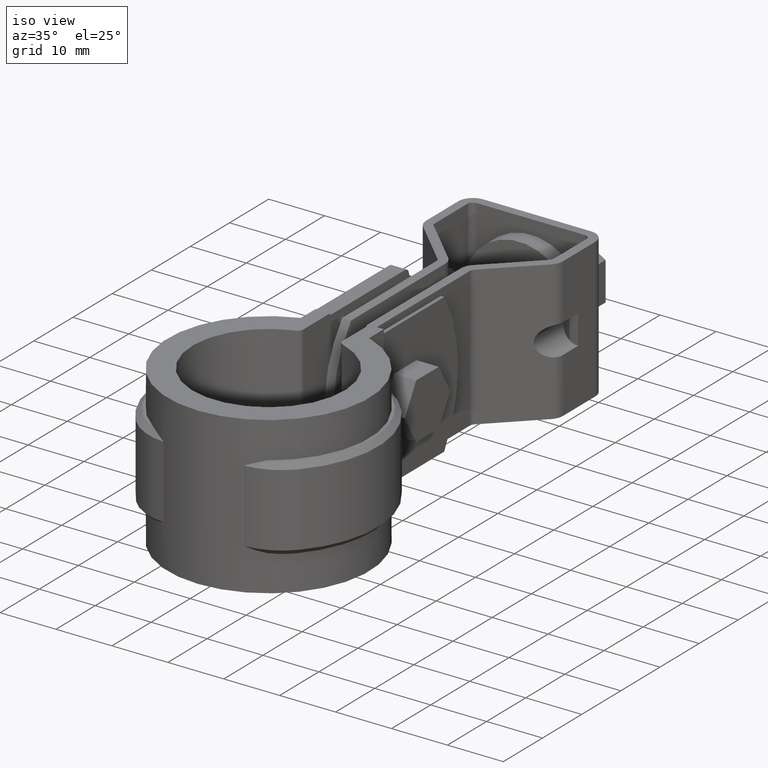
[diagram: clean part render]
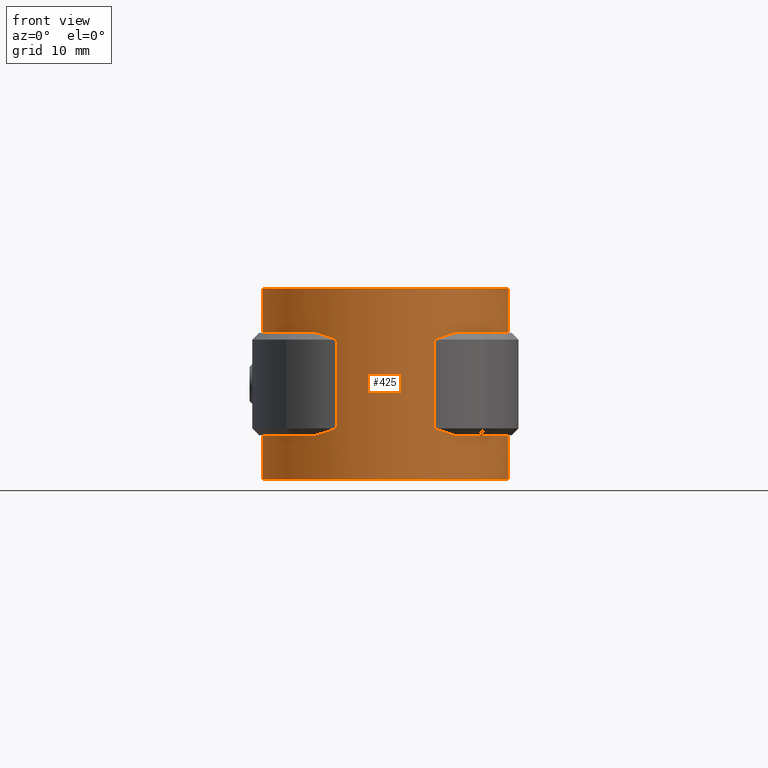
[diagram: tour spotlight — one face highlighted and labeled with its STEP entity id]
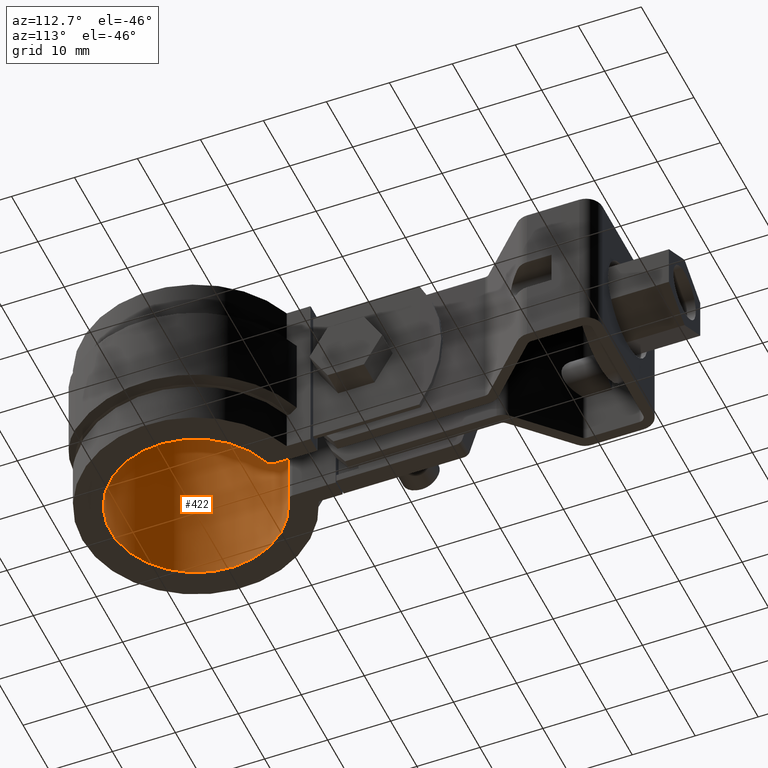
[diagram: tour spotlight — one face highlighted and labeled with its STEP entity id]
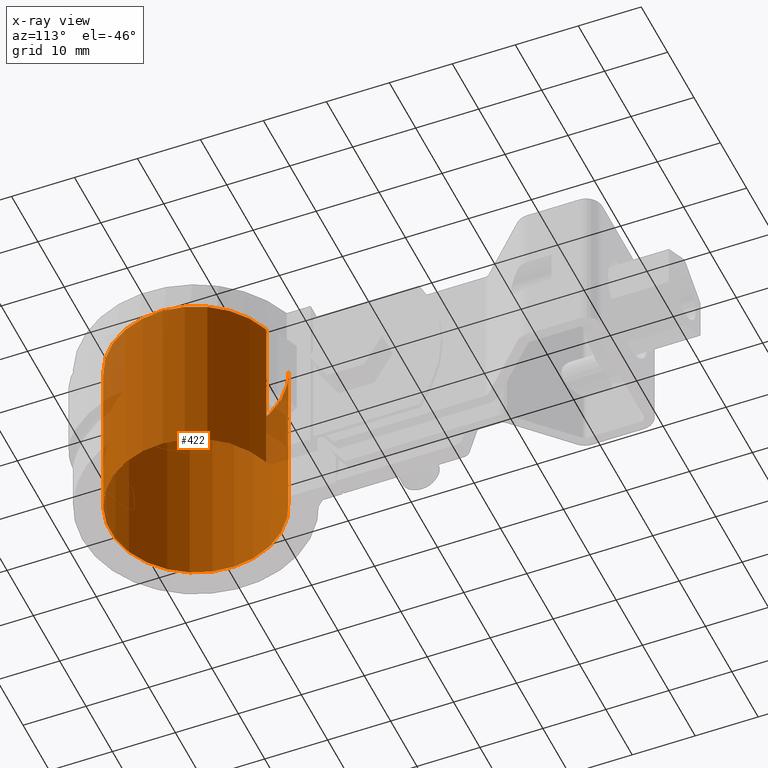
[diagram: x-ray of the same camera — body ghosted, this tour face saturated]
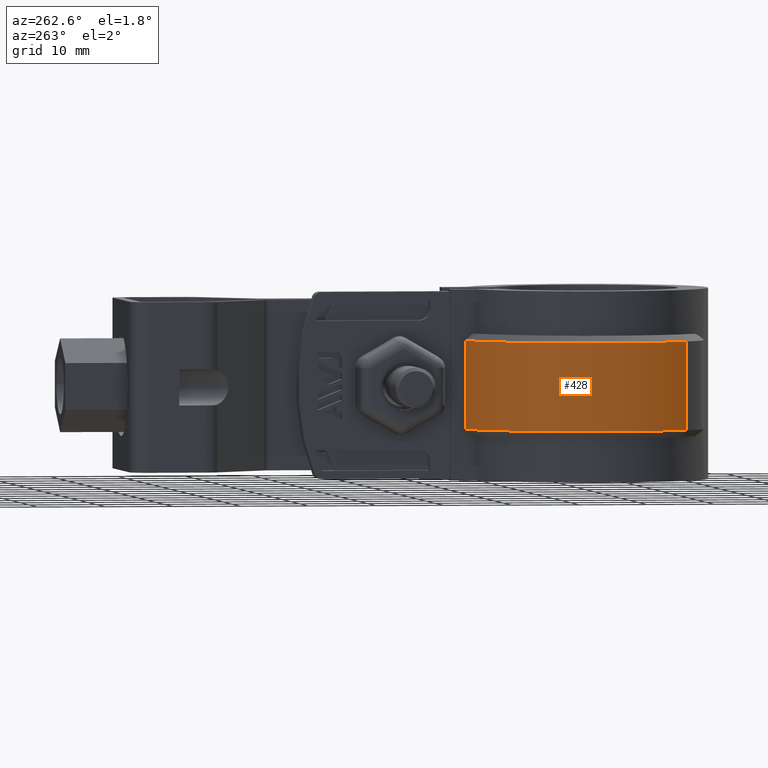
[diagram: tour spotlight — one face highlighted and labeled with its STEP entity id]
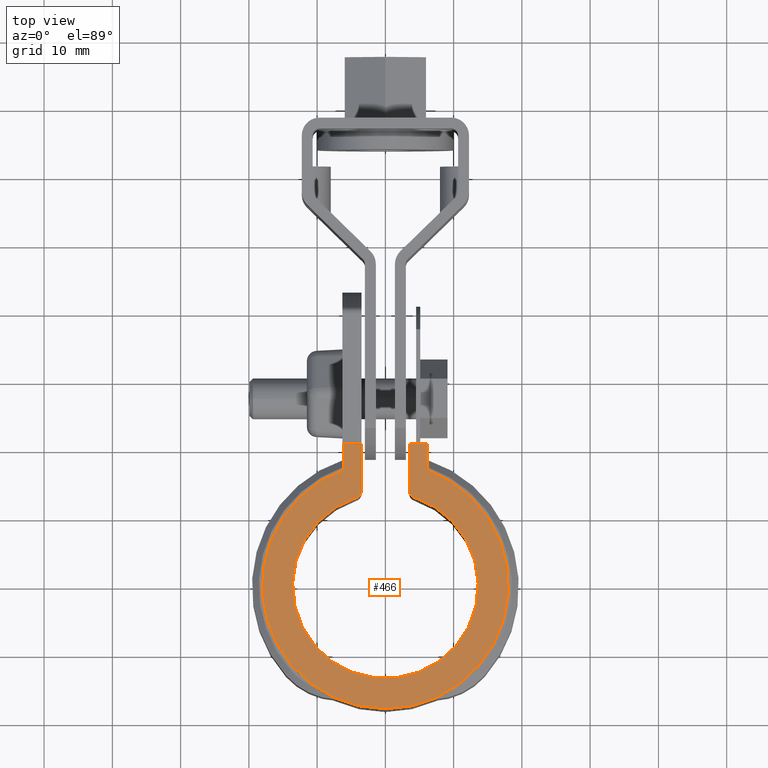
[diagram: tour spotlight — one face highlighted and labeled with its STEP entity id]
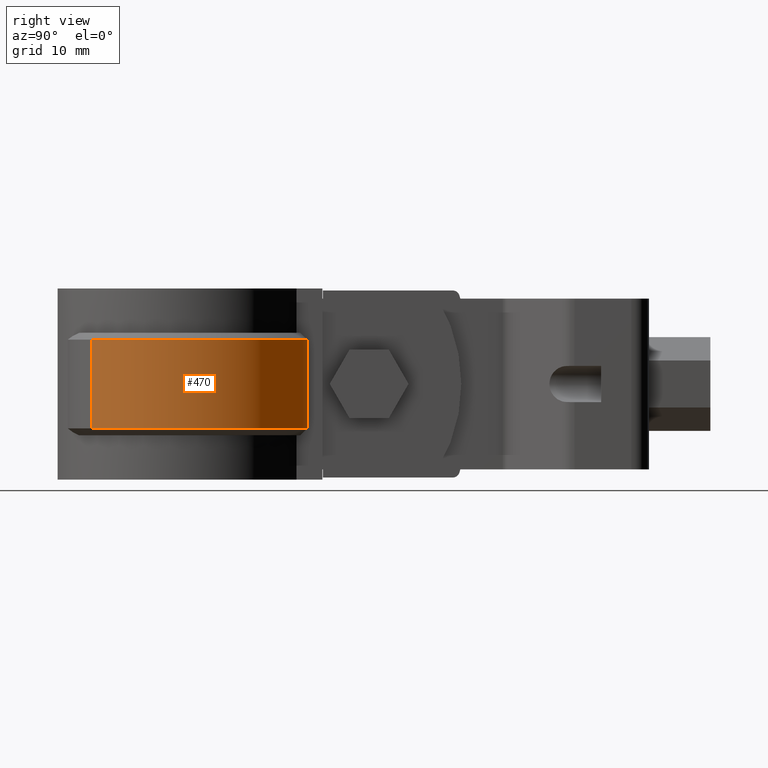
[diagram: tour spotlight — one face highlighted and labeled with its STEP entity id]
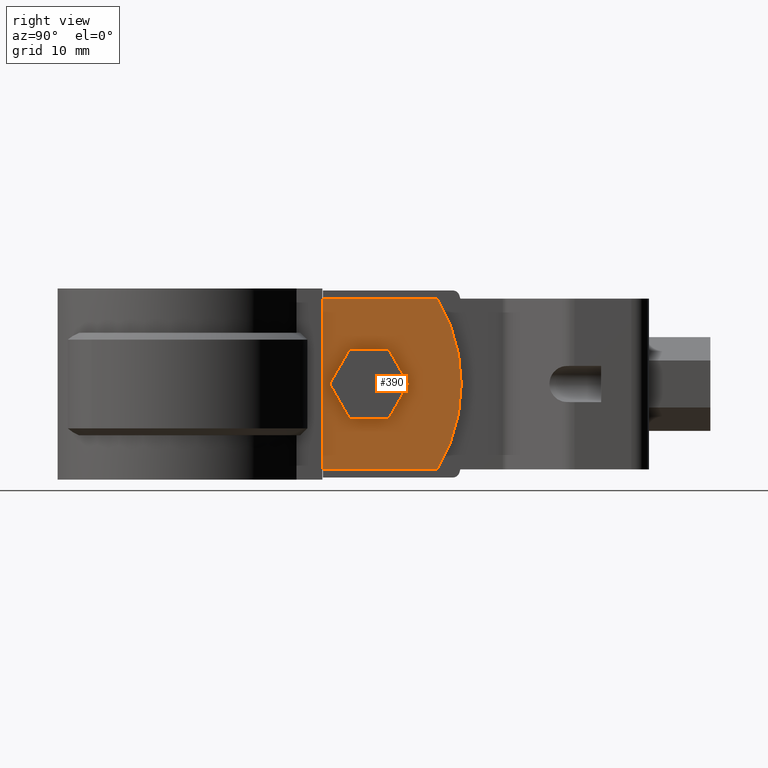
[diagram: tour spotlight — one face highlighted and labeled with its STEP entity id]
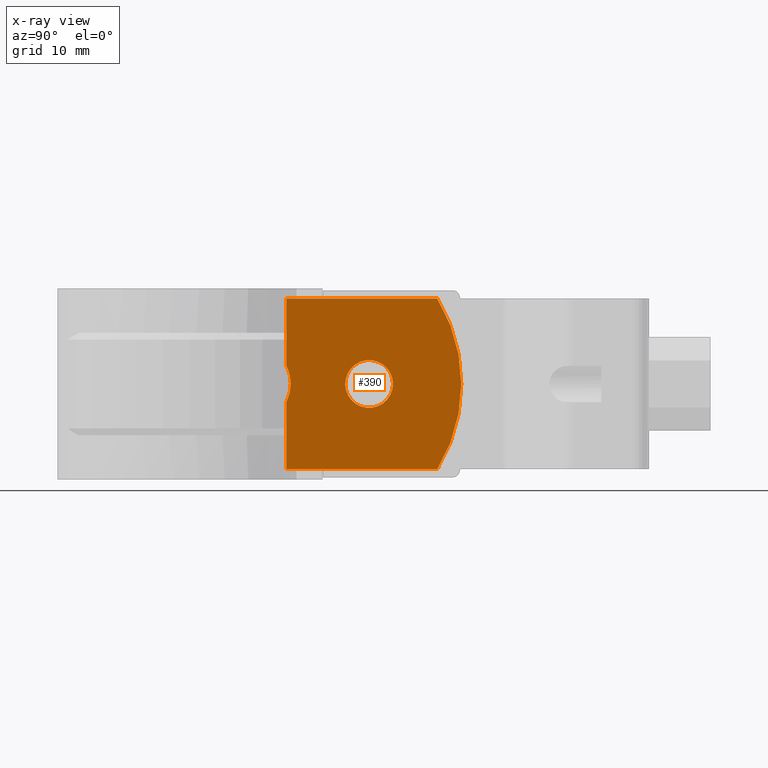
[diagram: x-ray of the same camera — body ghosted, this tour face saturated]
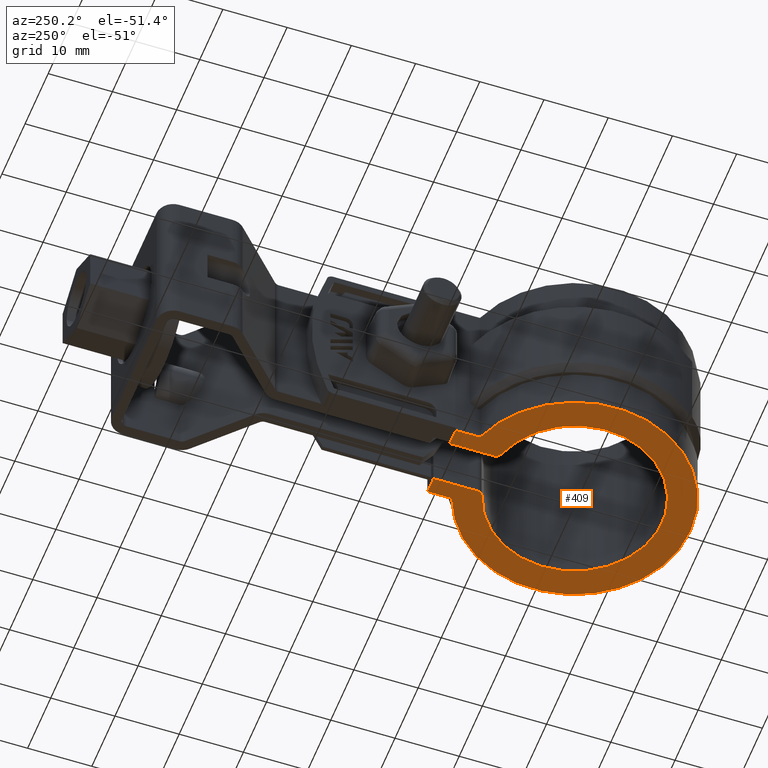
[diagram: tour spotlight — one face highlighted and labeled with its STEP entity id]
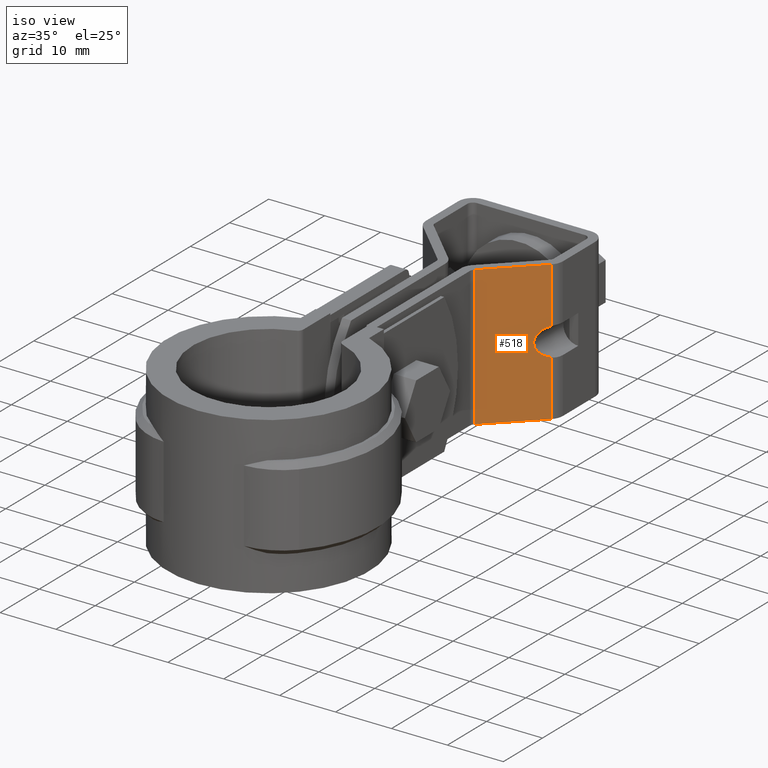
[diagram: tour spotlight — one face highlighted and labeled with its STEP entity id]
A machine part: a face-by-face anatomy tour. The part has 325 B-rep faces; the first image is the clean iso view, then the 8 largest visible faces are spotlighted one at a time (largest first), each with its STEP entity span.

Face 1 — front view, entity #425. In plain terms, the highlighted cylindrical surface (partial cylindrical patch) has radius 18.035 mm, axis along (0, 0, -1).
Definition (entity closure, byte-faithful):
#425 = ADVANCED_FACE( '', ( #820 ), #821, .T. );
#820 = FACE_OUTER_BOUND( '', #1709, .T. );
#821 = CYLINDRICAL_SURFACE( '', #1710, 18.0350000000000 );
#1709 = EDGE_LOOP( '', ( #3469, #3470, #3471, #3472, #3473, #3474, #3475, #3476, #3477, #3478, #3479, #3480, #3481, #3482, #3483, #3484 ) );
#1710 = AXIS2_PLACEMENT_3D( '', #3485, #3486, #3487 );
#3469 = ORIENTED_EDGE( '', *, *, #6194, .F. );
#3470 = ORIENTED_EDGE( '', *, *, #6191, .T. );
#3471 = ORIENTED_EDGE( '', *, *, #6195, .T. );
#3472 = ORIENTED_EDGE( '', *, *, #6196, .T. );
#3473 = ORIENTED_EDGE( '', *, *, #6197, .T. );
#3474 = ORIENTED_EDGE( '', *, *, #6198, .T. );
#3475 = ORIENTED_EDGE( '', *, *, #6199, .T. );
#3476 = ORIENTED_EDGE( '', *, *, #6123, .F. );
#3477 = ORIENTED_EDGE( '', *, *, #6200, .T. );
#3478 = ORIENTED_EDGE( '', *, *, #6201, .T. );
#3479 = ORIENTED_EDGE( '', *, *, #6202, .T. );
#3480 = ORIENTED_EDGE( '', *, *, #6203, .T. );
#3481 = ORIENTED_EDGE( '', *, *, #6204, .F. );
#3482 = ORIENTED_EDGE( '', *, *, #6117, .F. );
#3483 = ORIENTED_EDGE( '', *, *, #6115, .F. );
#3484 = ORIENTED_EDGE( '', *, *, #6205, .T. );
#3485 = CARTESIAN_POINT( '', ( 0.000000000000000, 1.38777878078145E-014, -26.5000000000000 ) );
#3486 = DIRECTION( '', ( 0.000000000000000, 0.000000000000000, -1.00000000000000 ) );
#3487 = DIRECTION( '', ( 0.000000000000000, -1.00000000000000, 0.000000000000000 ) );
#6115 = EDGE_CURVE( '', #7124, #7107, #7126, .T. );
#6117 = EDGE_CURVE( '', #7107, #7129, #7130, .T. );
#6123 = EDGE_CURVE( '', #7139, #7141, #7142, .T. );
#6191 = EDGE_CURVE( '', #7263, #7261, #7264, .T. );
#6194 = EDGE_CURVE( '', #7263, #7267, #7268, .T. );
#6195 = EDGE_CURVE( '', #7261, #7269, #7270, .T. );
#6196 = EDGE_CURVE( '', #7269, #7271, #7272, .T. );
#6197 = EDGE_CURVE( '', #7271, #7273, #7274, .T. );
#6198 = EDGE_CURVE( '', #7273, #7275, #7276, .T. );
#6199 = EDGE_CURVE( '', #7275, #7141, #7277, .T. );
#6200 = EDGE_CURVE( '', #7139, #7278, #7279, .T. );
#6201 = EDGE_CURVE( '', #7278, #7280, #7281, .T. );
#6202 = EDGE_CURVE( '', #7280, #7282, #7283, .F. );
#6203 = EDGE_CURVE( '', #7282, #7284, #7285, .T. );
#6204 = EDGE_CURVE( '', #7129, #7284, #7286, .T. );
#6205 = EDGE_CURVE( '', #7124, #7267, #7287, .T. );
#7107 = VERTEX_POINT( '', #9369 );
#7124 = VERTEX_POINT( '', #9391 );
#7126 = CIRCLE( '', #9394, 18.0350000000000 );
#7129 = VERTEX_POINT( '', #9398 );
#7130 = LINE( '', #9399, #9400 );
#7139 = VERTEX_POINT( '', #9417 );
#7141 = VERTEX_POINT( '', #9420 );
#7142 = LINE( '', #9421, #9422 );
#7261 = VERTEX_POINT( '', #9744 );
#7263 = VERTEX_POINT( '', #9746 );
#7264 = B_SPLINE_CURVE_WITH_KNOTS( '', 3, ( #9747, #9748, #9749, #9750 ), .UNSPECIFIED., .F., .F., ( 4, 4 ), ( 8.49837472194074E-018, 0.00356639113726256 ), .UNSPECIFIED. );
#7267 = VERTEX_POINT( '', #9754 );
#7268 = CIRCLE( '', #9755, 18.0350000000000 );
#7269 = VERTEX_POINT( '', #9756 );
#7270 = LINE( '', #9757, #9758 );
#7271 = VERTEX_POINT( '', #9759 );
#7272 = B_SPLINE_CURVE_WITH_KNOTS( '', 3, ( #9760, #9761, #9762, #9763 ), .UNSPECIFIED., .F., .F., ( 4, 4 ), ( 0.000000000000000, 0.00356639113726257 ), .UNSPECIFIED. );
#7273 = VERTEX_POINT( '', #9764 );
#7274 = CIRCLE( '', #9765, 18.0350000000000 );
#7275 = VERTEX_POINT( '', #9766 );
#7276 = LINE( '', #9767, #9768 );
#7277 = CIRCLE( '', #9769, 18.0350000000000 );
#7278 = VERTEX_POINT( '', #9770 );
#7279 = CIRCLE( '', #9771, 18.0350000000000 );
#7280 = VERTEX_POINT( '', #9772 );
#7281 = B_SPLINE_CURVE_WITH_KNOTS( '', 3, ( #9773, #9774, #9775, #9776 ), .UNSPECIFIED., .F., .F., ( 4, 4 ), ( 9.69739903612216E-018, 0.00356639113726256 ), .UNSPECIFIED. );
#7282 = VERTEX_POINT( '', #9777 );
#7283 = LINE( '', #9778, #9779 );
#7284 = VERTEX_POINT( '', #9780 );
#7285 = B_SPLINE_CURVE_WITH_KNOTS( '', 3, ( #9781, #9782, #9783, #9784 ), .UNSPECIFIED., .F., .F., ( 4, 4 ), ( 0.000000000000000, 0.00356639113726257 ), .UNSPECIFIED. );
#7286 = CIRCLE( '', #9785, 18.0350000000000 );
#7287 = LINE( '', #9786, #9787 );
#9369 = CARTESIAN_POINT( '', ( -6.10000000000000, 16.9720719124095, -26.5000000000000 ) );
#9391 = CARTESIAN_POINT( '', ( 6.10000000000001, 16.9720719124095, -26.5000000000000 ) );
#9394 = AXIS2_PLACEMENT_3D( '', #12166, #12167, #12168 );
#9398 = CARTESIAN_POINT( '', ( -6.10000000000000, 16.9720719124095, -20.0000000000000 ) );
#9399 = CARTESIAN_POINT( '', ( -6.10000000000000, 16.9720719124095, -26.5000000000000 ) );
#9400 = VECTOR( '', #12170, 1000.00000000000 );
#9417 = CARTESIAN_POINT( '', ( -6.10000000000000, 16.9720719124095, -5.00000000000000 ) );
#9420 = CARTESIAN_POINT( '', ( -6.10000000000000, 16.9720719124095, 1.50000000000000 ) );
#9421 = CARTESIAN_POINT( '', ( -6.10000000000000, 16.9720719124095, -26.5000000000000 ) );
#9422 = VECTOR( '', #12174, 1000.00000000000 );
#9744 = CARTESIAN_POINT( '', ( 7.17238060487721, -16.5474524159697, -19.0000000000000 ) );
#9746 = CARTESIAN_POINT( '', ( 10.1699563448573, -14.8940663669697, -20.0000000000000 ) );
#9747 = CARTESIAN_POINT( '', ( 10.1699563448573, -14.8940663669697, -20.0000000000000 ) );
#9748 = CARTESIAN_POINT( '', ( 9.20551594035216, -15.5526049130839, -19.7400863560935 ) );
#9749 = CARTESIAN_POINT( '', ( 8.20683278901869, -16.0990761586644, -19.3975274280984 ) );
#9750 = CARTESIAN_POINT( '', ( 7.17238060487720, -16.5474524159697, -19.0000000000000 ) );
#9754 = CARTESIAN_POINT( '', ( 6.10000000000001, 16.9720719124095, -20.0000000000000 ) );
#9755 = AXIS2_PLACEMENT_3D( '', #12272, #12273, #12274 );
#9756 = CARTESIAN_POINT( '', ( 7.17238060487721, -16.5474524159697, -6.00000000000000 ) );
#9757 = CARTESIAN_POINT( '', ( 7.17238060487721, -16.5474524159697, -12.5000000000000 ) );
#9758 = VECTOR( '', #12275, 1000.00000000000 );
#9759 = CARTESIAN_POINT( '', ( 10.1699563448573, -14.8940663669697, -5.00000000000000 ) );
#9760 = CARTESIAN_POINT( '', ( 7.17238060487721, -16.5474524159697, -6.00000000000000 ) );
#9761 = CARTESIAN_POINT( '', ( 8.20683278901869, -16.0990761586644, -5.60247257190161 ) );
#9762 = CARTESIAN_POINT( '', ( 9.20551594035216, -15.5526049130839, -5.25991364390649 ) );
#9763 = CARTESIAN_POINT( '', ( 10.1699563448573, -14.8940663669697, -5.00000000000000 ) );
#9764 = CARTESIAN_POINT( '', ( 6.10000000000001, 16.9720719124095, -5.00000000000000 ) );
#9765 = AXIS2_PLACEMENT_3D( '', #12276, #12277, #12278 );
#9766 = CARTESIAN_POINT( '', ( 6.10000000000001, 16.9720719124095, 1.50000000000000 ) );
#9767 = CARTESIAN_POINT( '', ( 6.10000000000001, 16.9720719124095, -26.5000000000000 ) );
#9768 = VECTOR( '', #12279, 1000.00000000000 );
#9769 = AXIS2_PLACEMENT_3D( '', #12280, #12281, #12282 );
#9770 = CARTESIAN_POINT( '', ( -10.1699563448573, -14.8940663669697, -5.00000000000000 ) );
#9771 = AXIS2_PLACEMENT_3D( '', #12283, #12284, #12285 );
#9772 = CARTESIAN_POINT( '', ( -7.17238060487721, -16.5474524159697, -6.00000000000000 ) );
#9773 = CARTESIAN_POINT( '', ( -10.1699563448573, -14.8940663669697, -5.00000000000000 ) );
#9774 = CARTESIAN_POINT( '', ( -9.20551594035216, -15.5526049130839, -5.25991364390649 ) );
#9775 = CARTESIAN_POINT( '', ( -8.20683278901869, -16.0990761586644, -5.60247257190161 ) );
#9776 = CARTESIAN_POINT( '', ( -7.17238060487720, -16.5474524159697, -6.00000000000000 ) );
#9777 = CARTESIAN_POINT( '', ( -7.17238060487721, -16.5474524159697, -19.0000000000000 ) );
#9778 = CARTESIAN_POINT( '', ( -7.17238060487721, -16.5474524159697, -12.5000000000000 ) );
#9779 = VECTOR( '', #12286, 1000.00000000000 );
#9780 = CARTESIAN_POINT( '', ( -10.1699563448573, -14.8940663669697, -20.0000000000000 ) );
#9781 = CARTESIAN_POINT( '', ( -7.17238060487721, -16.5474524159697, -19.0000000000000 ) );
#9782 = CARTESIAN_POINT( '', ( -8.20683278901869, -16.0990761586644, -19.3975274280984 ) );
#9783 = CARTESIAN_POINT( '', ( -9.20551594035216, -15.5526049130839, -19.7400863560935 ) );
#9784 = CARTESIAN_POINT( '', ( -10.1699563448573, -14.8940663669697, -20.0000000000000 ) );
#9785 = AXIS2_PLACEMENT_3D( '', #12287, #12288, #12289 );
#9786 = CARTESIAN_POINT( '', ( 6.10000000000001, 16.9720719124095, -26.5000000000000 ) );
#9787 = VECTOR( '', #12290, 1000.00000000000 );
#12166 = CARTESIAN_POINT( '', ( 0.000000000000000, 1.38777878078145E-014, -26.5000000000000 ) );
#12167 = DIRECTION( '', ( 0.000000000000000, 0.000000000000000, -1.00000000000000 ) );
#12168 = DIRECTION( '', ( 1.00000000000000, 0.000000000000000, 0.000000000000000 ) );
#12170 = DIRECTION( '', ( 0.000000000000000, 0.000000000000000, 1.00000000000000 ) );
#12174 = DIRECTION( '', ( 0.000000000000000, 0.000000000000000, 1.00000000000000 ) );
#12272 = CARTESIAN_POINT( '', ( 0.000000000000000, 1.38777878078145E-014, -20.0000000000000 ) );
#12273 = DIRECTION( '', ( 0.000000000000000, 0.000000000000000, 1.00000000000000 ) );
#12274 = DIRECTION( '', ( 1.00000000000000, 0.000000000000000, 0.000000000000000 ) );
#12275 = DIRECTION( '', ( 0.000000000000000, 0.000000000000000, 1.00000000000000 ) );
#12276 = CARTESIAN_POINT( '', ( 0.000000000000000, 1.38777878078145E-014, -5.00000000000000 ) );
#12277 = DIRECTION( '', ( 0.000000000000000, 0.000000000000000, 1.00000000000000 ) );
#12278 = DIRECTION( '', ( 1.00000000000000, 0.000000000000000, 0.000000000000000 ) );
#12279 = DIRECTION( '', ( 0.000000000000000, 0.000000000000000, 1.00000000000000 ) );
#12280 = CARTESIAN_POINT( '', ( 0.000000000000000, 1.38777878078145E-014, 1.50000000000000 ) );
#12281 = DIRECTION( '', ( 0.000000000000000, 0.000000000000000, -1.00000000000000 ) );
#12282 = DIRECTION( '', ( 1.00000000000000, 0.000000000000000, 0.000000000000000 ) );
#12283 = CARTESIAN_POINT( '', ( 0.000000000000000, 1.38777878078145E-014, -5.00000000000000 ) );
#12284 = DIRECTION( '', ( 0.000000000000000, 0.000000000000000, 1.00000000000000 ) );
#12285 = DIRECTION( '', ( 1.00000000000000, 0.000000000000000, 0.000000000000000 ) );
#12286 = DIRECTION( '', ( 0.000000000000000, 0.000000000000000, 1.00000000000000 ) );
#12287 = CARTESIAN_POINT( '', ( 0.000000000000000, 1.38777878078145E-014, -20.0000000000000 ) );
#12288 = DIRECTION( '', ( 0.000000000000000, 0.000000000000000, 1.00000000000000 ) );
#12289 = DIRECTION( '', ( 1.00000000000000, 0.000000000000000, 0.000000000000000 ) );
#12290 = DIRECTION( '', ( 0.000000000000000, 0.000000000000000, 1.00000000000000 ) );

Face 2 — auxiliary view, entity #422. An x-ray twin of the same camera follows (body ghosted, this face saturated) — the face is partly hidden behind the body. In plain terms, the highlighted cylindrical surface (partial cylindrical patch) has radius 13.6 mm, axis along (0, 0, -1).
Definition (entity closure, byte-faithful):
#422 = ADVANCED_FACE( '', ( #814 ), #815, .F. );
#814 = FACE_OUTER_BOUND( '', #1703, .T. );
#815 = CYLINDRICAL_SURFACE( '', #1704, 13.6000000000000 );
#1703 = EDGE_LOOP( '', ( #3448, #3449, #3450, #3451 ) );
#1704 = AXIS2_PLACEMENT_3D( '', #3452, #3453, #3454 );
#3448 = ORIENTED_EDGE( '', *, *, #6110, .F. );
#3449 = ORIENTED_EDGE( '', *, *, #6186, .T. );
#3450 = ORIENTED_EDGE( '', *, *, #6188, .T. );
#3451 = ORIENTED_EDGE( '', *, *, #6182, .T. );
#3452 = CARTESIAN_POINT( '', ( 0.000000000000000, 0.000000000000000, -64.3703924986111 ) );
#3453 = DIRECTION( '', ( 0.000000000000000, 0.000000000000000, -1.00000000000000 ) );
#3454 = DIRECTION( '', ( -1.00000000000000, 0.000000000000000, 0.000000000000000 ) );
#6110 = EDGE_CURVE( '', #7114, #7116, #7117, .F. );
#6182 = EDGE_CURVE( '', #7247, #7116, #7248, .F. );
#6186 = EDGE_CURVE( '', #7114, #7252, #7255, .T. );
#6188 = EDGE_CURVE( '', #7252, #7247, #7257, .F. );
#7114 = VERTEX_POINT( '', #9379 );
#7116 = VERTEX_POINT( '', #9381 );
#7117 = CIRCLE( '', #9382, 13.6000000000000 );
#7247 = VERTEX_POINT( '', #9725 );
#7248 = LINE( '', #9726, #9727 );
#7252 = VERTEX_POINT( '', #9732 );
#7255 = LINE( '', #9735, #9736 );
#7257 = CIRCLE( '', #9739, 13.6000000000000 );
#9379 = CARTESIAN_POINT( '', ( -4.19178082191781, 12.9378890681982, -26.5000000000000 ) );
#9381 = CARTESIAN_POINT( '', ( 4.19178082191781, 12.9378890681982, -26.5000000000000 ) );
#9382 = AXIS2_PLACEMENT_3D( '', #12157, #12158, #12159 );
#9725 = CARTESIAN_POINT( '', ( 4.19178082191781, 12.9378890681982, 1.50000000000000 ) );
#9726 = CARTESIAN_POINT( '', ( 4.19178082191781, 12.9378890681982, -64.3703924986111 ) );
#9727 = VECTOR( '', #12251, 1000.00000000000 );
#9732 = CARTESIAN_POINT( '', ( -4.19178082191781, 12.9378890681982, 1.50000000000000 ) );
#9735 = CARTESIAN_POINT( '', ( -4.19178082191781, 12.9378890681982, -64.3703924986111 ) );
#9736 = VECTOR( '', #12259, 1000.00000000000 );
#9739 = AXIS2_PLACEMENT_3D( '', #12261, #12262, #12263 );
#12157 = CARTESIAN_POINT( '', ( 0.000000000000000, 0.000000000000000, -26.5000000000000 ) );
#12158 = DIRECTION( '', ( 0.000000000000000, 0.000000000000000, -1.00000000000000 ) );
#12159 = DIRECTION( '', ( -1.00000000000000, 0.000000000000000, 0.000000000000000 ) );
#12251 = DIRECTION( '', ( 0.000000000000000, 0.000000000000000, 1.00000000000000 ) );
#12259 = DIRECTION( '', ( 0.000000000000000, 0.000000000000000, 1.00000000000000 ) );
#12261 = CARTESIAN_POINT( '', ( 0.000000000000000, 0.000000000000000, 1.50000000000000 ) );
#12262 = DIRECTION( '', ( 0.000000000000000, 0.000000000000000, -1.00000000000000 ) );
#12263 = DIRECTION( '', ( -1.00000000000000, 0.000000000000000, 0.000000000000000 ) );

Face 3 — auxiliary view, entity #428. In plain terms, the highlighted cylindrical surface (partial cylindrical patch) has radius 19.535 mm, axis along (0, 0, -1).
Definition (entity closure, byte-faithful):
#428 = ADVANCED_FACE( '', ( #826 ), #827, .T. );
#826 = FACE_OUTER_BOUND( '', #1715, .T. );
#827 = CYLINDRICAL_SURFACE( '', #1716, 19.5350000000000 );
#1715 = EDGE_LOOP( '', ( #3502, #3503, #3504, #3505 ) );
#1716 = AXIS2_PLACEMENT_3D( '', #3506, #3507, #3508 );
#3502 = ORIENTED_EDGE( '', *, *, #6211, .T. );
#3503 = ORIENTED_EDGE( '', *, *, #6212, .T. );
#3504 = ORIENTED_EDGE( '', *, *, #6120, .F. );
#3505 = ORIENTED_EDGE( '', *, *, #6213, .T. );
#3506 = CARTESIAN_POINT( '', ( -8.67361737988404E-016, 0.000000000000000, -20.0000000000000 ) );
#3507 = DIRECTION( '', ( 0.000000000000000, 0.000000000000000, -1.00000000000000 ) );
#3508 = DIRECTION( '', ( -0.261069874584080, 0.965319905826381, 0.000000000000000 ) );
#6120 = EDGE_CURVE( '', #7133, #7135, #7136, .T. );
#6211 = EDGE_CURVE( '', #7296, #7297, #7298, .T. );
#6212 = EDGE_CURVE( '', #7297, #7135, #7299, .F. );
#6213 = EDGE_CURVE( '', #7133, #7296, #7300, .T. );
#7133 = VERTEX_POINT( '', #9404 );
#7135 = VERTEX_POINT( '', #9409 );
#7136 = LINE( '', #9410, #9411 );
#7296 = VERTEX_POINT( '', #9801 );
#7297 = VERTEX_POINT( '', #9802 );
#7298 = LINE( '', #9803, #9804 );
#7299 = CIRCLE( '', #9805, 19.5350000000000 );
#7300 = CIRCLE( '', #9806, 19.5350000000000 );
#9404 = CARTESIAN_POINT( '', ( -6.10000000000001, 18.5581848519730, -19.0000000000000 ) );
#9409 = CARTESIAN_POINT( '', ( -6.10000000000001, 18.5581848519730, -6.00000000000000 ) );
#9410 = CARTESIAN_POINT( '', ( -6.10000000000001, 18.5581848519730, -20.0000000000000 ) );
#9411 = VECTOR( '', #12172, 1000.00000000000 );
#9801 = CARTESIAN_POINT( '', ( -14.5540076052262, -13.0306211527700, -19.0000000000000 ) );
#9802 = CARTESIAN_POINT( '', ( -14.5540076052262, -13.0306211527700, -6.00000000000000 ) );
#9803 = CARTESIAN_POINT( '', ( -14.5540076052262, -13.0306211527700, -20.0000000000000 ) );
#9804 = VECTOR( '', #12299, 1000.00000000000 );
#9805 = AXIS2_PLACEMENT_3D( '', #12300, #12301, #12302 );
#9806 = AXIS2_PLACEMENT_3D( '', #12303, #12304, #12305 );
#12172 = DIRECTION( '', ( 0.000000000000000, 0.000000000000000, 1.00000000000000 ) );
#12299 = DIRECTION( '', ( 0.000000000000000, 0.000000000000000, 1.00000000000000 ) );
#12300 = CARTESIAN_POINT( '', ( -8.67361737988404E-016, 0.000000000000000, -6.00000000000000 ) );
#12301 = DIRECTION( '', ( 0.000000000000000, 0.000000000000000, 1.00000000000000 ) );
#12302 = DIRECTION( '', ( 1.00000000000000, 0.000000000000000, 0.000000000000000 ) );
#12303 = CARTESIAN_POINT( '', ( -8.67361737988404E-016, 0.000000000000000, -19.0000000000000 ) );
#12304 = DIRECTION( '', ( 0.000000000000000, 0.000000000000000, 1.00000000000000 ) );
#12305 = DIRECTION( '', ( 1.00000000000000, 0.000000000000000, 0.000000000000000 ) );

Face 4 — top view, entity #466. In plain terms, the highlighted planar face has unit normal (0, 0, -1).
Definition (entity closure, byte-faithful):
#466 = ADVANCED_FACE( '', ( #902 ), #903, .F. );
#902 = FACE_OUTER_BOUND( '', #1887, .T. );
#903 = PLANE( '', #1888 );
#1887 = EDGE_LOOP( '', ( #4049, #4050, #4051, #4052, #4053, #4054, #4055, #4056, #4057, #4058 ) );
#1888 = AXIS2_PLACEMENT_3D( '', #4059, #4060, #4061 );
#4049 = ORIENTED_EDGE( '', *, *, #6129, .F. );
#4050 = ORIENTED_EDGE( '', *, *, #6124, .F. );
#4051 = ORIENTED_EDGE( '', *, *, #6199, .F. );
#4052 = ORIENTED_EDGE( '', *, *, #6215, .F. );
#4053 = ORIENTED_EDGE( '', *, *, #6306, .F. );
#4054 = ORIENTED_EDGE( '', *, *, #6206, .T. );
#4055 = ORIENTED_EDGE( '', *, *, #6183, .T. );
#4056 = ORIENTED_EDGE( '', *, *, #6188, .F. );
#4057 = ORIENTED_EDGE( '', *, *, #6185, .T. );
#4058 = ORIENTED_EDGE( '', *, *, #6193, .T. );
#4059 = CARTESIAN_POINT( '', ( -6.50000000000000, 16.2373058110020, 1.50000000000000 ) );
#4060 = DIRECTION( '', ( 0.000000000000000, 0.000000000000000, -1.00000000000000 ) );
#4061 = DIRECTION( '', ( 0.000000000000000, 1.00000000000000, 0.000000000000000 ) );
#6124 = EDGE_CURVE( '', #7141, #7127, #7143, .T. );
#6129 = EDGE_CURVE( '', #7127, #7152, #7153, .T. );
#6183 = EDGE_CURVE( '', #7249, #7247, #7250, .F. );
#6185 = EDGE_CURVE( '', #7252, #7253, #7254, .F. );
#6188 = EDGE_CURVE( '', #7252, #7247, #7257, .F. );
#6193 = EDGE_CURVE( '', #7253, #7152, #7266, .T. );
#6199 = EDGE_CURVE( '', #7275, #7141, #7277, .T. );
#6206 = EDGE_CURVE( '', #7288, #7249, #7289, .T. );
#6215 = EDGE_CURVE( '', #7301, #7275, #7303, .T. );
#6306 = EDGE_CURVE( '', #7288, #7301, #7442, .T. );
#7127 = VERTEX_POINT( '', #9395 );
#7141 = VERTEX_POINT( '', #9420 );
#7143 = LINE( '', #9423, #9424 );
#7152 = VERTEX_POINT( '', #9437 );
#7153 = LINE( '', #9438, #9439 );
#7247 = VERTEX_POINT( '', #9725 );
#7249 = VERTEX_POINT( '', #9728 );
#7250 = CIRCLE( '', #9729, 1.00000000000000 );
#7252 = VERTEX_POINT( '', #9732 );
#7253 = VERTEX_POINT( '', #9733 );
#7254 = CIRCLE( '', #9734, 1.00000000000000 );
#7257 = CIRCLE( '', #9739, 13.6000000000000 );
#7266 = LINE( '', #9752, #9753 );
#7275 = VERTEX_POINT( '', #9766 );
#7277 = CIRCLE( '', #9769, 18.0350000000000 );
#7288 = VERTEX_POINT( '', #9788 );
#7289 = LINE( '', #9789, #9790 );
#7301 = VERTEX_POINT( '', #9807 );
#7303 = LINE( '', #9810, #9811 );
#7442 = LINE( '', #10462, #10463 );
#9395 = CARTESIAN_POINT( '', ( -6.10000000000001, 20.7500000000000, 1.50000000000000 ) );
#9420 = CARTESIAN_POINT( '', ( -6.10000000000000, 16.9720719124095, 1.50000000000000 ) );
#9423 = CARTESIAN_POINT( '', ( -6.10000000000000, 16.9720719124095, 1.50000000000000 ) );
#9424 = VECTOR( '', #12175, 1000.00000000000 );
#9437 = CARTESIAN_POINT( '', ( -3.50000000000000, 20.7500000000000, 1.50000000000000 ) );
#9438 = CARTESIAN_POINT( '', ( -6.50000000000000, 20.7500000000000, 1.50000000000000 ) );
#9439 = VECTOR( '', #12180, 1000.00000000000 );
#9725 = CARTESIAN_POINT( '', ( 4.19178082191781, 12.9378890681982, 1.50000000000000 ) );
#9728 = CARTESIAN_POINT( '', ( 3.50000000000000, 13.8892044408598, 1.50000000000000 ) );
#9729 = AXIS2_PLACEMENT_3D( '', #12252, #12253, #12254 );
#9732 = CARTESIAN_POINT( '', ( -4.19178082191781, 12.9378890681982, 1.50000000000000 ) );
#9733 = CARTESIAN_POINT( '', ( -3.50000000000000, 13.8892044408598, 1.50000000000000 ) );
#9734 = AXIS2_PLACEMENT_3D( '', #12256, #12257, #12258 );
#9739 = AXIS2_PLACEMENT_3D( '', #12261, #12262, #12263 );
#9752 = CARTESIAN_POINT( '', ( -3.50000000000000, 13.1367433178851, 1.50000000000000 ) );
#9753 = VECTOR( '', #12271, 1000.00000000000 );
#9766 = CARTESIAN_POINT( '', ( 6.10000000000001, 16.9720719124095, 1.50000000000000 ) );
#9769 = AXIS2_PLACEMENT_3D( '', #12280, #12281, #12282 );
#9788 = CARTESIAN_POINT( '', ( 3.50000000000000, 20.7500000000000, 1.50000000000000 ) );
#9789 = CARTESIAN_POINT( '', ( 3.50000000000000, 20.7500000000000, 1.50000000000000 ) );
#9790 = VECTOR( '', #12291, 1000.00000000000 );
#9807 = CARTESIAN_POINT( '', ( 6.10000000000000, 20.7500000000000, 1.50000000000000 ) );
#9810 = CARTESIAN_POINT( '', ( 6.10000000000001, 21.4700000000000, 1.50000000000000 ) );
#9811 = VECTOR( '', #12307, 1000.00000000000 );
#10462 = CARTESIAN_POINT( '', ( -6.50000000000000, 20.7500000000000, 1.50000000000000 ) );
#10463 = VECTOR( '', #12403, 1000.00000000000 );
#12175 = DIRECTION( '', ( 6.07153216591883E-017, 1.00000000000000, 0.000000000000000 ) );
#12180 = DIRECTION( '', ( 1.00000000000000, 0.000000000000000, 0.000000000000000 ) );
#12252 = CARTESIAN_POINT( '', ( 4.50000000000000, 13.8892044408598, 1.50000000000000 ) );
#12253 = DIRECTION( '', ( 0.000000000000000, 0.000000000000000, -1.00000000000000 ) );
#12254 = DIRECTION( '', ( -1.00000000000000, 0.000000000000000, 0.000000000000000 ) );
#12256 = CARTESIAN_POINT( '', ( -4.50000000000000, 13.8892044408598, 1.50000000000000 ) );
#12257 = DIRECTION( '', ( 0.000000000000000, 0.000000000000000, -1.00000000000000 ) );
#12258 = DIRECTION( '', ( -1.00000000000000, 0.000000000000000, 0.000000000000000 ) );
#12261 = CARTESIAN_POINT( '', ( 0.000000000000000, 0.000000000000000, 1.50000000000000 ) );
#12262 = DIRECTION( '', ( 0.000000000000000, 0.000000000000000, -1.00000000000000 ) );
#12263 = DIRECTION( '', ( -1.00000000000000, 0.000000000000000, 0.000000000000000 ) );
#12271 = DIRECTION( '', ( 6.07153216591882E-017, 1.00000000000000, 0.000000000000000 ) );
#12280 = CARTESIAN_POINT( '', ( 0.000000000000000, 1.38777878078145E-014, 1.50000000000000 ) );
#12281 = DIRECTION( '', ( 0.000000000000000, 0.000000000000000, -1.00000000000000 ) );
#12282 = DIRECTION( '', ( 1.00000000000000, 0.000000000000000, 0.000000000000000 ) );
#12291 = DIRECTION( '', ( -6.07153216591882E-017, -1.00000000000000, 0.000000000000000 ) );
#12307 = DIRECTION( '', ( -6.07153216591883E-017, -1.00000000000000, 0.000000000000000 ) );
#12403 = DIRECTION( '', ( 1.00000000000000, 0.000000000000000, 0.000000000000000 ) );

Face 5 — right view, entity #470. In plain terms, the highlighted cylindrical surface (partial cylindrical patch) has radius 19.535 mm, axis along (0, 0, -1).
Definition (entity closure, byte-faithful):
#470 = ADVANCED_FACE( '', ( #910 ), #911, .T. );
#910 = FACE_OUTER_BOUND( '', #1895, .T. );
#911 = CYLINDRICAL_SURFACE( '', #1896, 19.5350000000000 );
#1895 = EDGE_LOOP( '', ( #4083, #4084, #4085, #4086 ) );
#1896 = AXIS2_PLACEMENT_3D( '', #4087, #4088, #4089 );
#4083 = ORIENTED_EDGE( '', *, *, #6218, .F. );
#4084 = ORIENTED_EDGE( '', *, *, #6224, .T. );
#4085 = ORIENTED_EDGE( '', *, *, #6233, .F. );
#4086 = ORIENTED_EDGE( '', *, *, #6209, .T. );
#4087 = CARTESIAN_POINT( '', ( 8.67361737988404E-016, 0.000000000000000, -20.0000000000000 ) );
#4088 = DIRECTION( '', ( 0.000000000000000, 0.000000000000000, -1.00000000000000 ) );
#4089 = DIRECTION( '', ( 0.261069874584080, 0.965319905826381, 0.000000000000000 ) );
#6209 = EDGE_CURVE( '', #7259, #7291, #7294, .T. );
#6218 = EDGE_CURVE( '', #7306, #7291, #7308, .F. );
#6224 = EDGE_CURVE( '', #7306, #7310, #7316, .F. );
#6233 = EDGE_CURVE( '', #7259, #7310, #7327, .T. );
#7259 = VERTEX_POINT( '', #9741 );
#7291 = VERTEX_POINT( '', #9793 );
#7294 = CIRCLE( '', #9799, 19.5350000000000 );
#7306 = VERTEX_POINT( '', #9815 );
#7308 = LINE( '', #9820, #9821 );
#7310 = VERTEX_POINT( '', #9824 );
#7316 = CIRCLE( '', #9831, 19.5350000000000 );
#7327 = LINE( '', #9844, #9845 );
#9741 = CARTESIAN_POINT( '', ( 14.5540076052262, -13.0306211527700, -19.0000000000000 ) );
#9793 = CARTESIAN_POINT( '', ( 6.10000000000001, 18.5581848519730, -19.0000000000000 ) );
#9799 = AXIS2_PLACEMENT_3D( '', #12293, #12294, #12295 );
#9815 = CARTESIAN_POINT( '', ( 6.10000000000001, 18.5581848519730, -6.00000000000000 ) );
#9820 = CARTESIAN_POINT( '', ( 6.10000000000001, 18.5581848519730, -20.0000000000000 ) );
#9821 = VECTOR( '', #12309, 1000.00000000000 );
#9824 = CARTESIAN_POINT( '', ( 14.5540076052262, -13.0306211527700, -6.00000000000000 ) );
#9831 = AXIS2_PLACEMENT_3D( '', #12321, #12322, #12323 );
#9844 = CARTESIAN_POINT( '', ( 14.5540076052262, -13.0306211527700, -20.0000000000000 ) );
#9845 = VECTOR( '', #12344, 1000.00000000000 );
#12293 = CARTESIAN_POINT( '', ( 8.67361737988404E-016, 0.000000000000000, -19.0000000000000 ) );
#12294 = DIRECTION( '', ( 0.000000000000000, 0.000000000000000, 1.00000000000000 ) );
#12295 = DIRECTION( '', ( 1.00000000000000, 0.000000000000000, 0.000000000000000 ) );
#12309 = DIRECTION( '', ( 0.000000000000000, 0.000000000000000, 1.00000000000000 ) );
#12321 = CARTESIAN_POINT( '', ( 8.67361737988404E-016, 0.000000000000000, -6.00000000000000 ) );
#12322 = DIRECTION( '', ( 0.000000000000000, 0.000000000000000, 1.00000000000000 ) );
#12323 = DIRECTION( '', ( 1.00000000000000, 0.000000000000000, 0.000000000000000 ) );
#12344 = DIRECTION( '', ( 0.000000000000000, 0.000000000000000, 1.00000000000000 ) );

Face 6 — right view, entity #390. An x-ray twin of the same camera follows (body ghosted, this face saturated) — the face is partly hidden behind the body. In plain terms, the highlighted planar face has unit normal (-1, 0, 0).
Definition (entity closure, byte-faithful):
#390 = ADVANCED_FACE( '', ( #744, #745 ), #746, .F. );
#744 = FACE_BOUND( '', #1585, .T. );
#745 = FACE_OUTER_BOUND( '', #1586, .T. );
#746 = PLANE( '', #1587 );
#1585 = EDGE_LOOP( '', ( #3159 ) );
#1586 = EDGE_LOOP( '', ( #3160, #3161, #3162, #3163, #3164, #3165 ) );
#1587 = AXIS2_PLACEMENT_3D( '', #3166, #3167, #3168 );
#3159 = ORIENTED_EDGE( '', *, *, #6082, .F. );
#3160 = ORIENTED_EDGE( '', *, *, #6016, .F. );
#3161 = ORIENTED_EDGE( '', *, *, #6083, .T. );
#3162 = ORIENTED_EDGE( '', *, *, #6084, .T. );
#3163 = ORIENTED_EDGE( '', *, *, #6085, .F. );
#3164 = ORIENTED_EDGE( '', *, *, #5990, .F. );
#3165 = ORIENTED_EDGE( '', *, *, #6073, .T. );
#3166 = CARTESIAN_POINT( '', ( 5.10000000000000, 15.4916106328554, 0.000000000000000 ) );
#3167 = DIRECTION( '', ( -1.00000000000000, 6.12303176911189E-017, 0.000000000000000 ) );
#3168 = DIRECTION( '', ( 6.12303176911189E-017, 1.00000000000000, 0.000000000000000 ) );
#5990 = EDGE_CURVE( '', #6917, #6919, #6920, .T. );
#6016 = EDGE_CURVE( '', #6966, #6960, #6968, .T. );
#6073 = EDGE_CURVE( '', #6917, #6960, #7061, .T. );
#6082 = EDGE_CURVE( '', #7073, #7073, #7074, .F. );
#6083 = EDGE_CURVE( '', #6966, #7075, #7076, .T. );
#6084 = EDGE_CURVE( '', #7075, #7077, #7078, .T. );
#6085 = EDGE_CURVE( '', #6919, #7077, #7079, .T. );
#6917 = VERTEX_POINT( '', #8558 );
#6919 = VERTEX_POINT( '', #8560 );
#6920 = LINE( '', #8561, #8562 );
#6960 = VERTEX_POINT( '', #8764 );
#6966 = VERTEX_POINT( '', #8814 );
#6968 = B_SPLINE_CURVE_WITH_KNOTS( '', 3, ( #8829, #8830, #8831, #8832, #8833, #8834, #8835, #8836, #8837, #8838 ), .UNSPECIFIED., .F., .F., ( 4, 2, 2, 2, 4 ), ( 5.48567729465110E-018, 0.00136579450935443, 0.00273158901870885, 0.00409738352806327, 0.00546317803741769 ), .UNSPECIFIED. );
#7061 = LINE( '', #9268, #9269 );
#7073 = VERTEX_POINT( '', #9321 );
#7074 = CIRCLE( '', #9322, 3.50000000000000 );
#7075 = VERTEX_POINT( '', #9323 );
#7076 = LINE( '', #9324, #9325 );
#7077 = VERTEX_POINT( '', #9326 );
#7078 = LINE( '', #9327, #9328 );
#7079 = CIRCLE( '', #9329, 24.0000000000000 );
#8558 = CARTESIAN_POINT( '', ( 5.10000000000000, 15.4916106328554, 0.000000000000000 ) );
#8560 = CARTESIAN_POINT( '', ( 5.09999999999998, 37.5870920108522, 0.000000000000000 ) );
#8561 = CARTESIAN_POINT( '', ( 5.10000000000000, 15.4916106328554, 0.000000000000000 ) );
#8562 = VECTOR( '', #12024, 1000.00000000000 );
#8764 = CARTESIAN_POINT( '', ( 5.10000000000000, 15.4916106328554, -9.85142775085576 ) );
#8814 = CARTESIAN_POINT( '', ( 5.10000000000000, 15.4916106328554, -15.1485722491443 ) );
#8829 = CARTESIAN_POINT( '', ( 5.10000000000000, 15.4916106328554, -15.1485722491442 ) );
#8830 = CARTESIAN_POINT( '', ( 5.10000000000000, 15.6967920675091, -14.7350618658671 ) );
#8831 = CARTESIAN_POINT( '', ( 5.10000000000001, 15.8522280185925, -14.3064620349916 ) );
#8832 = CARTESIAN_POINT( '', ( 5.10000000000001, 16.0655025348784, -13.4196578637597 ) );
#8833 = CARTESIAN_POINT( '', ( 5.09999999999998, 16.1222734361860, -12.9567523839680 ) );
#8834 = CARTESIAN_POINT( '', ( 5.09999999999998, 16.1225202626657, -12.0462908152732 ) );
#8835 = CARTESIAN_POINT( '', ( 5.10000000000000, 16.0678594231896, -11.5925929151367 ) );
#8836 = CARTESIAN_POINT( '', ( 5.10000000000000, 15.8533328580298, -10.6957203202213 ) );
#8837 = CARTESIAN_POINT( '', ( 5.09999999999950, 15.6967703169076, -10.2648942992723 ) );
#8838 = CARTESIAN_POINT( '', ( 5.09999999999950, 15.4916106328555, -9.85142775085575 ) );
#9268 = CARTESIAN_POINT( '', ( 5.10000000000000, 15.4916106328554, 0.000000000000000 ) );
#9269 = VECTOR( '', #12097, 1000.00000000000 );
#9321 = CARTESIAN_POINT( '', ( 5.10000000000000, 24.0992907623043, -12.5000000000000 ) );
#9322 = AXIS2_PLACEMENT_3D( '', #12107, #12108, #12109 );
#9323 = CARTESIAN_POINT( '', ( 5.10000000000000, 15.4916106328554, -25.0000000000000 ) );
#9324 = CARTESIAN_POINT( '', ( 5.10000000000000, 15.4916106328554, 0.000000000000000 ) );
#9325 = VECTOR( '', #12110, 1000.00000000000 );
#9326 = CARTESIAN_POINT( '', ( 5.09999999999998, 37.5870920108522, -25.0000000000000 ) );
#9327 = CARTESIAN_POINT( '', ( 5.10000000000000, 15.4916106328554, -25.0000000000000 ) );
#9328 = VECTOR( '', #12111, 1000.00000000000 );
#9329 = AXIS2_PLACEMENT_3D( '', #12112, #12113, #12114 );
#12024 = DIRECTION( '', ( 6.12303176911189E-017, 1.00000000000000, 0.000000000000000 ) );
#12097 = DIRECTION( '', ( 0.000000000000000, 0.000000000000000, -1.00000000000000 ) );
#12107 = CARTESIAN_POINT( '', ( 5.10000000000000, 27.5992907623043, -12.5000000000000 ) );
#12108 = DIRECTION( '', ( -1.00000000000000, 6.12303176911189E-017, 0.000000000000000 ) );
#12109 = DIRECTION( '', ( -6.12303176911189E-017, -1.00000000000000, 0.000000000000000 ) );
#12110 = DIRECTION( '', ( 0.000000000000000, 0.000000000000000, -1.00000000000000 ) );
#12111 = DIRECTION( '', ( 6.12303176911189E-017, 1.00000000000000, 0.000000000000000 ) );
#12112 = CARTESIAN_POINT( '', ( 5.10000000000001, 17.0992907623043, -12.5000000000000 ) );
#12113 = DIRECTION( '', ( -1.00000000000000, 6.12303176911189E-017, 0.000000000000000 ) );
#12114 = DIRECTION( '', ( -6.12303176911189E-017, -1.00000000000000, 0.000000000000000 ) );

Face 7 — auxiliary view, entity #409. In plain terms, the highlighted planar face has unit normal (0, 0, -1).
Definition (entity closure, byte-faithful):
#409 = ADVANCED_FACE( '', ( #787 ), #788, .T. );
#787 = FACE_OUTER_BOUND( '', #1676, .T. );
#788 = PLANE( '', #1677 );
#1676 = EDGE_LOOP( '', ( #3307, #3308, #3309, #3310, #3311, #3312, #3313, #3314, #3315, #3316 ) );
#1677 = AXIS2_PLACEMENT_3D( '', #3317, #3318, #3319 );
#3307 = ORIENTED_EDGE( '', *, *, #6106, .T. );
#3308 = ORIENTED_EDGE( '', *, *, #6107, .T. );
#3309 = ORIENTED_EDGE( '', *, *, #6108, .F. );
#3310 = ORIENTED_EDGE( '', *, *, #6109, .T. );
#3311 = ORIENTED_EDGE( '', *, *, #6110, .T. );
#3312 = ORIENTED_EDGE( '', *, *, #6111, .T. );
#3313 = ORIENTED_EDGE( '', *, *, #6112, .F. );
#3314 = ORIENTED_EDGE( '', *, *, #6113, .T. );
#3315 = ORIENTED_EDGE( '', *, *, #6114, .T. );
#3316 = ORIENTED_EDGE( '', *, *, #6115, .T. );
#3317 = CARTESIAN_POINT( '', ( -6.50000000000000, 16.2373058110020, -26.5000000000000 ) );
#3318 = DIRECTION( '', ( 0.000000000000000, 0.000000000000000, -1.00000000000000 ) );
#3319 = DIRECTION( '', ( 0.000000000000000, 1.00000000000000, 0.000000000000000 ) );
#6106 = EDGE_CURVE( '', #7107, #7108, #7109, .T. );
#6107 = EDGE_CURVE( '', #7108, #7110, #7111, .T. );
#6108 = EDGE_CURVE( '', #7112, #7110, #7113, .T. );
#6109 = EDGE_CURVE( '', #7112, #7114, #7115, .T. );
#6110 = EDGE_CURVE( '', #7114, #7116, #7117, .F. );
#6111 = EDGE_CURVE( '', #7116, #7118, #7119, .T. );
#6112 = EDGE_CURVE( '', #7120, #7118, #7121, .T. );
#6113 = EDGE_CURVE( '', #7120, #7122, #7123, .T. );
#6114 = EDGE_CURVE( '', #7122, #7124, #7125, .T. );
#6115 = EDGE_CURVE( '', #7124, #7107, #7126, .T. );
#7107 = VERTEX_POINT( '', #9369 );
#7108 = VERTEX_POINT( '', #9370 );
#7109 = LINE( '', #9371, #9372 );
#7110 = VERTEX_POINT( '', #9373 );
#7111 = LINE( '', #9374, #9375 );
#7112 = VERTEX_POINT( '', #9376 );
#7113 = LINE( '', #9377, #9378 );
#7114 = VERTEX_POINT( '', #9379 );
#7115 = CIRCLE( '', #9380, 1.00000000000000 );
#7116 = VERTEX_POINT( '', #9381 );
#7117 = CIRCLE( '', #9382, 13.6000000000000 );
#7118 = VERTEX_POINT( '', #9383 );
#7119 = CIRCLE( '', #9384, 1.00000000000000 );
#7120 = VERTEX_POINT( '', #9385 );
#7121 = LINE( '', #9386, #9387 );
#7122 = VERTEX_POINT( '', #9388 );
#7123 = LINE( '', #9389, #9390 );
#7124 = VERTEX_POINT( '', #9391 );
#7125 = LINE( '', #9392, #9393 );
#7126 = CIRCLE( '', #9394, 18.0350000000000 );
#9369 = CARTESIAN_POINT( '', ( -6.10000000000000, 16.9720719124095, -26.5000000000000 ) );
#9370 = CARTESIAN_POINT( '', ( -6.10000000000001, 20.7500000000000, -26.5000000000000 ) );
#9371 = CARTESIAN_POINT( '', ( -6.10000000000000, 16.9720719124095, -26.5000000000000 ) );
#9372 = VECTOR( '', #12151, 1000.00000000000 );
#9373 = CARTESIAN_POINT( '', ( -3.50000000000000, 20.7500000000000, -26.5000000000000 ) );
#9374 = CARTESIAN_POINT( '', ( -6.50000000000000, 20.7500000000000, -26.5000000000000 ) );
#9375 = VECTOR( '', #12152, 1000.00000000000 );
#9376 = CARTESIAN_POINT( '', ( -3.50000000000000, 13.8892044408598, -26.5000000000000 ) );
#9377 = CARTESIAN_POINT( '', ( -3.50000000000000, 13.1367433178851, -26.5000000000000 ) );
#9378 = VECTOR( '', #12153, 1000.00000000000 );
#9379 = CARTESIAN_POINT( '', ( -4.19178082191781, 12.9378890681982, -26.5000000000000 ) );
#9380 = AXIS2_PLACEMENT_3D( '', #12154, #12155, #12156 );
#9381 = CARTESIAN_POINT( '', ( 4.19178082191781, 12.9378890681982, -26.5000000000000 ) );
#9382 = AXIS2_PLACEMENT_3D( '', #12157, #12158, #12159 );
#9383 = CARTESIAN_POINT( '', ( 3.50000000000000, 13.8892044408598, -26.5000000000000 ) );
#9384 = AXIS2_PLACEMENT_3D( '', #12160, #12161, #12162 );
#9385 = CARTESIAN_POINT( '', ( 3.50000000000000, 20.7500000000000, -26.5000000000000 ) );
#9386 = CARTESIAN_POINT( '', ( 3.50000000000000, 20.7500000000000, -26.5000000000000 ) );
#9387 = VECTOR( '', #12163, 1000.00000000000 );
#9388 = CARTESIAN_POINT( '', ( 6.10000000000000, 20.7500000000000, -26.5000000000000 ) );
#9389 = CARTESIAN_POINT( '', ( -6.50000000000000, 20.7500000000000, -26.5000000000000 ) );
#9390 = VECTOR( '', #12164, 1000.00000000000 );
#9391 = CARTESIAN_POINT( '', ( 6.10000000000001, 16.9720719124095, -26.5000000000000 ) );
#9392 = CARTESIAN_POINT( '', ( 6.10000000000001, 21.4700000000000, -26.5000000000000 ) );
#9393 = VECTOR( '', #12165, 1000.00000000000 );
#9394 = AXIS2_PLACEMENT_3D( '', #12166, #12167, #12168 );
#12151 = DIRECTION( '', ( 6.07153216591883E-017, 1.00000000000000, 0.000000000000000 ) );
#12152 = DIRECTION( '', ( 1.00000000000000, 0.000000000000000, 0.000000000000000 ) );
#12153 = DIRECTION( '', ( 6.07153216591882E-017, 1.00000000000000, 0.000000000000000 ) );
#12154 = CARTESIAN_POINT( '', ( -4.50000000000000, 13.8892044408598, -26.5000000000000 ) );
#12155 = DIRECTION( '', ( 0.000000000000000, 0.000000000000000, -1.00000000000000 ) );
#12156 = DIRECTION( '', ( -1.00000000000000, 0.000000000000000, 0.000000000000000 ) );
#12157 = CARTESIAN_POINT( '', ( 0.000000000000000, 0.000000000000000, -26.5000000000000 ) );
#12158 = DIRECTION( '', ( 0.000000000000000, 0.000000000000000, -1.00000000000000 ) );
#12159 = DIRECTION( '', ( -1.00000000000000, 0.000000000000000, 0.000000000000000 ) );
#12160 = CARTESIAN_POINT( '', ( 4.50000000000000, 13.8892044408598, -26.5000000000000 ) );
#12161 = DIRECTION( '', ( 0.000000000000000, 0.000000000000000, -1.00000000000000 ) );
#12162 = DIRECTION( '', ( -1.00000000000000, 0.000000000000000, 0.000000000000000 ) );
#12163 = DIRECTION( '', ( -6.07153216591882E-017, -1.00000000000000, 0.000000000000000 ) );
#12164 = DIRECTION( '', ( 1.00000000000000, 0.000000000000000, 0.000000000000000 ) );
#12165 = DIRECTION( '', ( -6.07153216591883E-017, -1.00000000000000, 0.000000000000000 ) );
#12166 = CARTESIAN_POINT( '', ( 0.000000000000000, 1.38777878078145E-014, -26.5000000000000 ) );
#12167 = DIRECTION( '', ( 0.000000000000000, 0.000000000000000, -1.00000000000000 ) );
#12168 = DIRECTION( '', ( 1.00000000000000, 0.000000000000000, 0.000000000000000 ) );

Face 8 — iso view, entity #518. In plain terms, the highlighted planar face has unit normal (0.6983, -0.7158, -0).
Definition (entity closure, byte-faithful):
#518 = ADVANCED_FACE( '', ( #1014 ), #1015, .T. );
#1014 = FACE_OUTER_BOUND( '', #2095, .T. );
#1015 = PLANE( '', #2096 );
#2095 = EDGE_LOOP( '', ( #4587, #4588, #4589, #4590, #4591, #4592 ) );
#2096 = AXIS2_PLACEMENT_3D( '', #4593, #4594, #4595 );
#4587 = ORIENTED_EDGE( '', *, *, #6436, .T. );
#4588 = ORIENTED_EDGE( '', *, *, #6442, .F. );
#4589 = ORIENTED_EDGE( '', *, *, #6349, .T. );
#4590 = ORIENTED_EDGE( '', *, *, #6368, .F. );
#4591 = ORIENTED_EDGE( '', *, *, #6328, .F. );
#4592 = ORIENTED_EDGE( '', *, *, #6443, .F. );
#4593 = CARTESIAN_POINT( '', ( 3.90167626334635, 48.4545849654600, 1.59454671688763E-008 ) );
#4594 = DIRECTION( '', ( 0.698323834961611, -0.715781965073520, -6.74171421275959E-011 ) );
#4595 = DIRECTION( '', ( -0.715781965073520, -0.698323834961611, -1.19159657042789E-010 ) );
#6328 = EDGE_CURVE( '', #7480, #7482, #7483, .T. );
#6349 = EDGE_CURVE( '', #7520, #7521, #7522, .T. );
#6368 = EDGE_CURVE( '', #7482, #7521, #7553, .T. );
#6436 = EDGE_CURVE( '', #7660, #7658, #7661, .T. );
#6442 = EDGE_CURVE( '', #7520, #7658, #7668, .T. );
#6443 = EDGE_CURVE( '', #7660, #7480, #7669, .T. );
#7480 = VERTEX_POINT( '', #10565 );
#7482 = VERTEX_POINT( '', #10567 );
#7483 = LINE( '', #10568, #10569 );
#7520 = VERTEX_POINT( '', #10617 );
#7521 = VERTEX_POINT( '', #10618 );
#7522 = ELLIPSE( '', #10619, 3.70224472166266, 2.64999999999997 );
#7553 = LINE( '', #10685, #10686 );
#7658 = VERTEX_POINT( '', #10859 );
#7660 = VERTEX_POINT( '', #10861 );
#7661 = LINE( '', #10862, #10863 );
#7668 = LINE( '', #10873, #10874 );
#7669 = LINE( '', #10875, #10876 );
#10565 = CARTESIAN_POINT( '', ( 3.30167626288110, 47.8692191393473, 1.58455748522357E-008 ) );
#10567 = CARTESIAN_POINT( '', ( 11.4656420771212, 55.8340634551859, 1.72046682456184E-008 ) );
#10568 = CARTESIAN_POINT( '', ( 3.90167626334635, 48.4545849654600, 1.59454671688763E-008 ) );
#10569 = VECTOR( '', #12435, 1000.00000000000 );
#10617 = CARTESIAN_POINT( '', ( 11.4656420776956, 55.8340634571620, -15.0312610290936 ) );
#10618 = CARTESIAN_POINT( '', ( 11.4656420775021, 55.8340634564965, -9.96873893649709 ) );
#10619 = AXIS2_PLACEMENT_3D( '', #12474, #12475, #12476 );
#10685 = CARTESIAN_POINT( '', ( 11.4656420771212, 55.8340634551859, 1.72046682456184E-008 ) );
#10686 = VECTOR( '', #12501, 1000.00000000000 );
#10859 = CARTESIAN_POINT( '', ( 11.4656420780765, 55.8340634584726, -24.9999999827953 ) );
#10861 = CARTESIAN_POINT( '', ( 3.30167626383644, 47.8692191426340, -24.9999999841544 ) );
#10862 = CARTESIAN_POINT( '', ( 3.90167626430168, 48.4545849687467, -24.9999999840545 ) );
#10863 = VECTOR( '', #12607, 1000.00000000000 );
#10873 = CARTESIAN_POINT( '', ( 11.4656420771212, 55.8340634551859, 1.72046682456184E-008 ) );
#10874 = VECTOR( '', #12617, 1000.00000000000 );
#10875 = CARTESIAN_POINT( '', ( 3.30167626288110, 47.8692191393473, 1.58455609744479E-008 ) );
#10876 = VECTOR( '', #12618, 1000.00000000000 );
#12435 = DIRECTION( '', ( 0.715781965073516, 0.698323834961614, 1.19159657042789E-010 ) );
#12474 = CARTESIAN_POINT( '', ( 12.2500001058277, 56.5992907648398, -12.4999999826648 ) );
#12475 = DIRECTION( '', ( -0.698323834961609, 0.715781965073521, 6.74171070251485E-011 ) );
#12476 = DIRECTION( '', ( 0.715781965073521, 0.698323834961609, 1.19159693022799E-010 ) );
#12501 = DIRECTION( '', ( 3.82133362428794E-011, 1.31468003150562E-010, -1.00000000000000 ) );
#12607 = DIRECTION( '', ( 0.715781965073516, 0.698323834961614, 1.19159657042789E-010 ) );
#12617 = DIRECTION( '', ( 3.82133362428794E-011, 1.31468003150562E-010, -1.00000000000000 ) );
#12618 = DIRECTION( '', ( -3.82133974731971E-011, -1.31468062887455E-010, 1.00000000000000 ) );